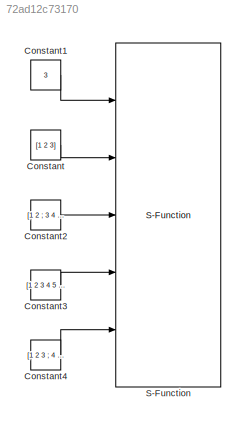
MODEL slx_72ad12c73170
KIND model
CONFIG AbsTol = auto
CONFIG EnableMultiTasking = on
CONFIG FixedStep = 1
CONFIG MaxStep = auto
CONFIG MinStep = auto
CONFIG RelTol = 1e-3
CONFIG SampleTimeConstraint = Unconstrained
CONFIG Solver = FixedStepDiscrete
CONFIG SolverName = FixedStepDiscrete
CONFIG StartTime = 0.0
CONFIG StopTime = 3
BLOCK [Constant] Constant
  Value = [1 2 3]
BLOCK [Constant] Constant1
  Value = 3
BLOCK [Constant] Constant2
  Value = [1 2 ; 3 4 ; 5 6 ; 7 8]
BLOCK [Constant] Constant3
  Value = [1 2 3 4 5 6]
BLOCK [Constant] Constant4
  Value = [1 2 3 ; 4 5 6]
BLOCK [S-Function] S-Function
  EnableBusSupport = off
  FunctionName = sfunInputs
  Ports = [5]
  SFcnIsStateOwnerBlock = off
  SFunctionDeploymentMode = off
LINE Constant1:1 -> S-Function:1
LINE Constant2:1 -> S-Function:3
LINE Constant3:1 -> S-Function:4
LINE Constant4:1 -> S-Function:5
LINE Constant:1 -> S-Function:2
